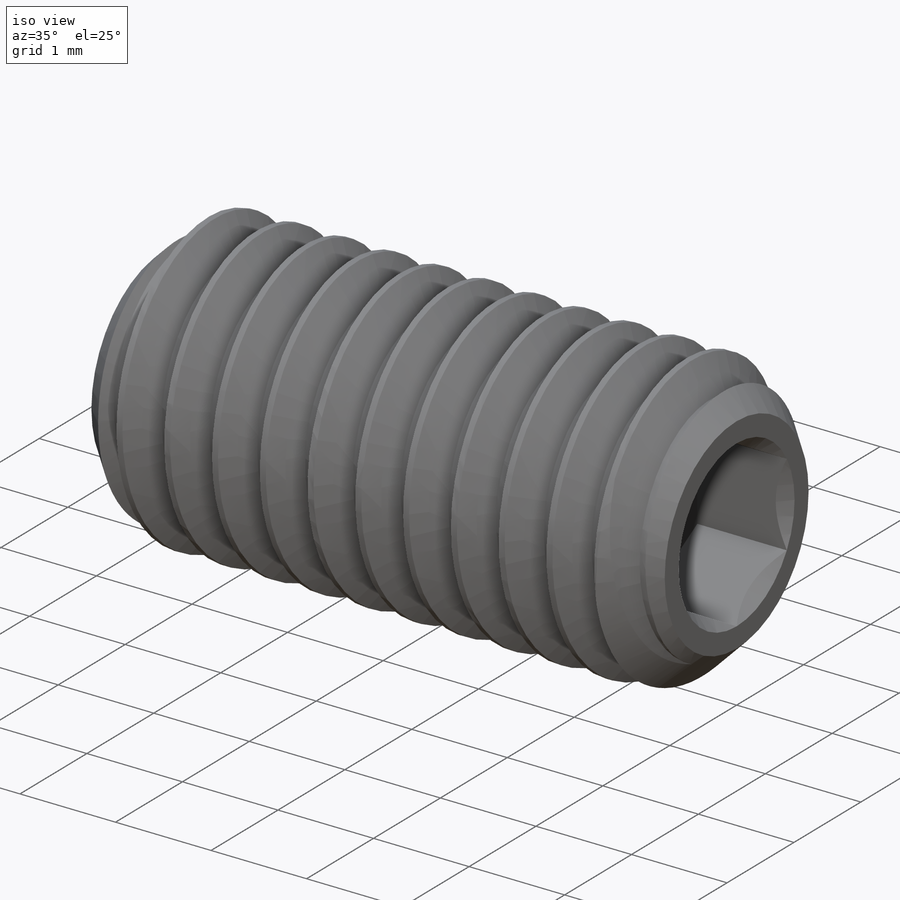
[diagram: iso view]
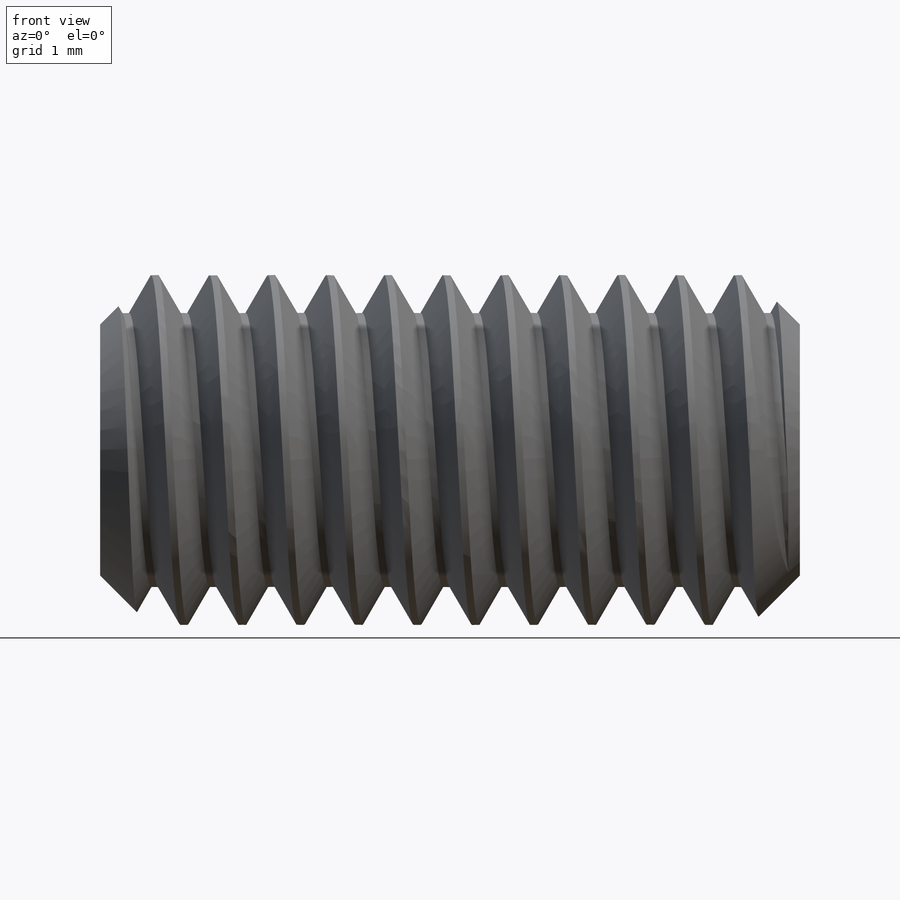
[diagram: front view]
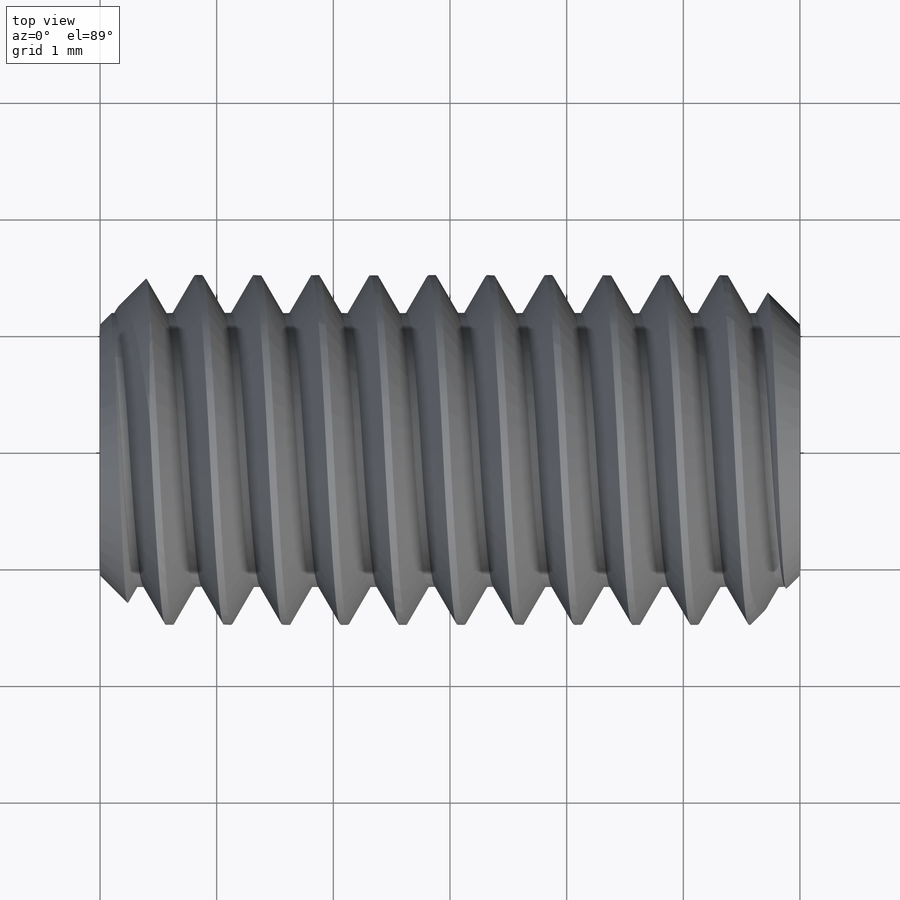
[diagram: top view]
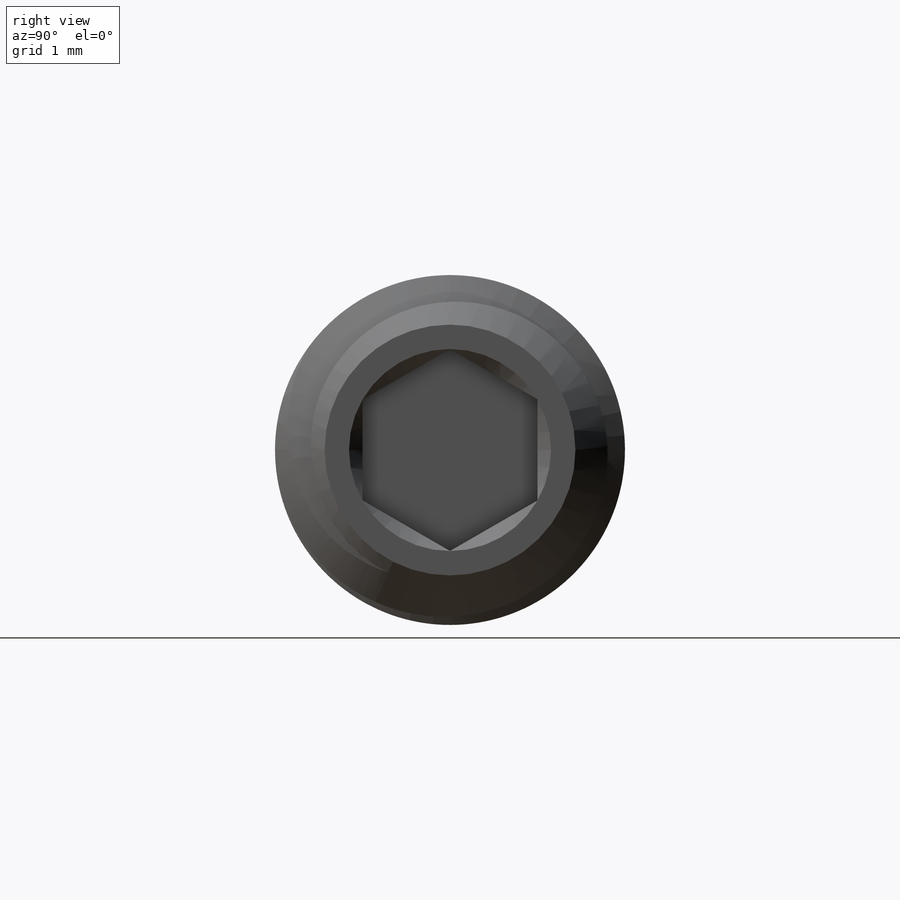
[diagram: right view]
SOLIDWORKS PART (.sldprt)
format: sldprt  version: not decoded by parser v0  size: 666,112 bytes
history: native  units: mm
features: sketch x8, cut_extrude x4, material x1, plane x1, extrude x1, helix x1, sweep x1 (+11 scaffold rows collapsed)
feature tree (28):
  scaffold x11  (default folders/planes/origin — collapsed)
  material  "Alloy Steel"
  sketch  "Sketch1"  dims[Length=6.0mm tip length=5.3mm]
  plane  "Plane1"
  sketch  "Sketch2"  dims[OD=3.0mm]
  extrude  "Extrude1"  [1 undecoded]
  sketch  "Sketch3"  dims[D1=0.0mm]
  helix  "Helix/Spiral1"  Pitch=9mm
  sketch  "Sketch4"  dims[c1.D1=~2.871521mm c2.D1=60.0deg c2.D2=0.0625mm c2.D3=0.25mm c2.D4=3.0mm c2.D5=2.25mm]
  sweep  "Cut-Sweep1"
  sketch  "Sketch5"  dims[D1=0.1mm]
  cut_extrude  "Cut-Extrude1"  [1 undecoded]
  sketch  "Sketch6"  dims[D1=0.0mm]
  cut_extrude  "Cut-Extrude2"  [1 undecoded]
  sketch  "Sketch8"  dims[Hex=1.5mm]
  cut_extrude  "Cut-Extrude3"  Depth=0.9375mm
  sketch  "Sketch9"
  cut_extrude  "Cut-Extrude4"  Depth=0.9375mm
decode coverage: 10 of 15 modeling features carry decoded parameters
note: ~ marks probable driven/reference dimensions
note: 3 parameter values undecoded
summary: no parameter record found for 3 features
note: suppression state not decoded; provenance and decode notes live in map.json
